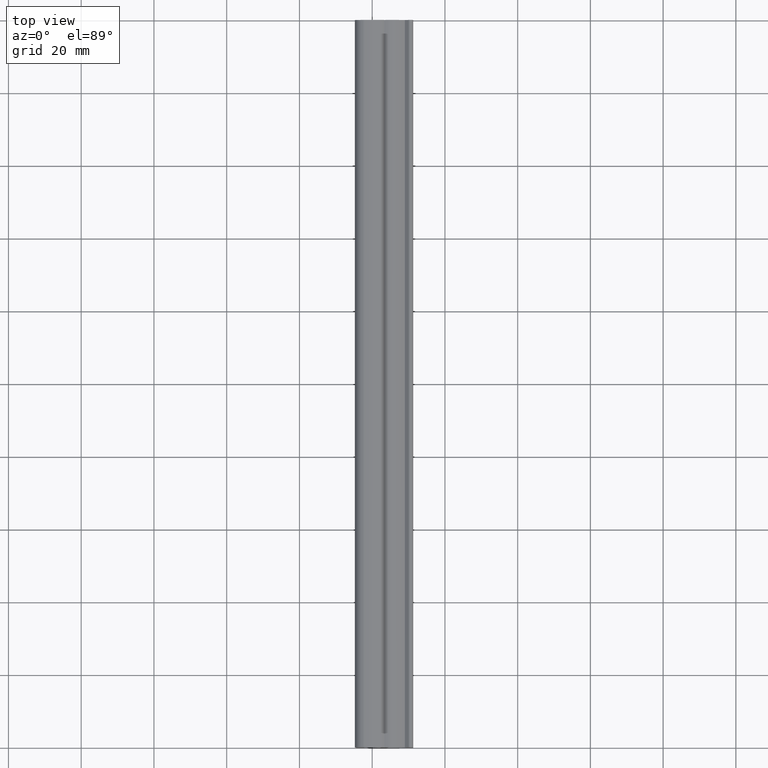
[diagram: clean part render]
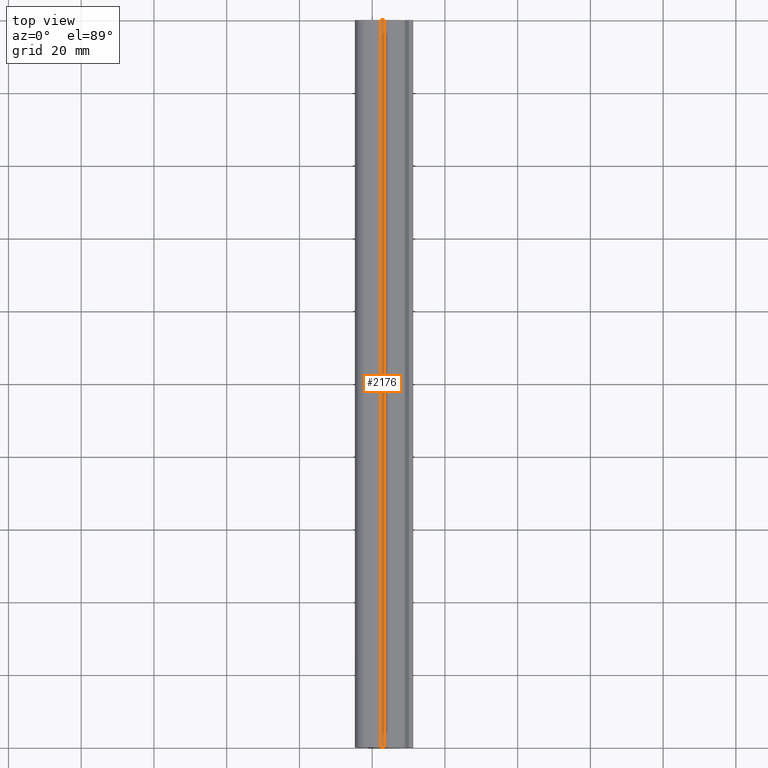
[diagram: same view with one face highlighted and labeled with its STEP entity id]
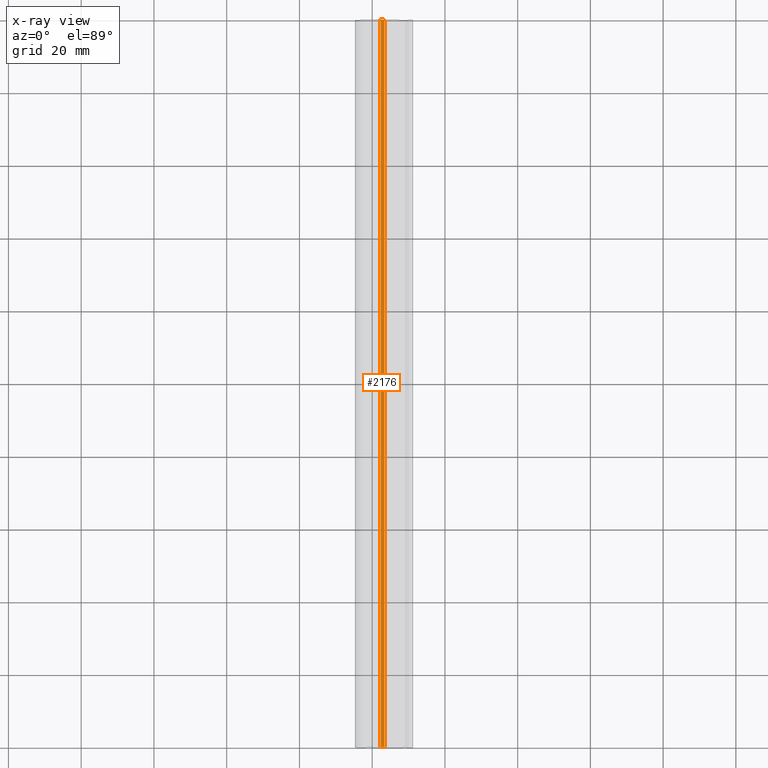
[diagram: x-ray of the same camera — body ghosted, the highlighted face saturated]
A machine part, top view. The second image highlights one B-rep face of the part: STEP entity #2176.
The next image is the same camera in x-ray: the body ghosted, the highlighted face saturated — about 0% of this face is hidden behind the body in this view.
In plain terms, the highlighted face is a freeform B-spline surface patch.
Its self-contained STEP definition (entity closure, byte-faithful):
#539=CARTESIAN_POINT('',(3.346007917701170,0.0,-0.764694374094733));
#540=VERTEX_POINT('',#539);
#554=CARTESIAN_POINT('',(2.315008351885935,0.0,-0.294374045513836));
#555=VERTEX_POINT('',#554);
#556=CARTESIAN_POINT('',(3.346007917701174,0.0,-0.764694374094733));
#557=CARTESIAN_POINT('',(2.872160055464380,0.0,-0.438228115813905));
#558=CARTESIAN_POINT('',(2.315008351885934,0.0,-0.294374045513835));
#566=(BOUNDED_CURVE()B_SPLINE_CURVE(2,(#556,#557,#558),.UNSPECIFIED.,.F.,.U.)CURVE()GEOMETRIC_REPRESENTATION_ITEM()QUASI_UNIFORM_CURVE()RATIONAL_B_SPLINE_CURVE((1.0,0.984673672583946,1.0))REPRESENTATION_ITEM(''));
#567=EDGE_CURVE('',#540,#555,#566,.T.);
#763=CARTESIAN_POINT('',(2.315008351885935,200.0,-0.294374045513836));
#764=VERTEX_POINT('',#763);
#778=CARTESIAN_POINT('',(3.346007917701170,200.0,-0.764694374094733));
#779=VERTEX_POINT('',#778);
#780=CARTESIAN_POINT('',(3.346007917701174,200.0,-0.764694374094733));
#781=CARTESIAN_POINT('',(2.872160055464380,199.999999999999970,-0.438228115813905));
#782=CARTESIAN_POINT('',(2.315008351885934,200.0,-0.294374045513835));
#790=(BOUNDED_CURVE()B_SPLINE_CURVE(2,(#780,#781,#782),.UNSPECIFIED.,.F.,.U.)CURVE()GEOMETRIC_REPRESENTATION_ITEM()QUASI_UNIFORM_CURVE()RATIONAL_B_SPLINE_CURVE((1.0,0.984673672583946,1.0))REPRESENTATION_ITEM(''));
#791=EDGE_CURVE('',#779,#764,#790,.T.);
#2144=CARTESIAN_POINT('',(3.346007917701170,200.0,-0.764694374094733));
#2145=CARTESIAN_POINT('',(3.346007917701170,0.0,-0.764694374094733));
#2146=QUASI_UNIFORM_CURVE('',1,(#2144,#2145),.UNSPECIFIED.,.F.,.U.);
#2147=EDGE_CURVE('',#779,#540,#2146,.T.);
#2152=CARTESIAN_POINT('',(2.287527319461705,205.0,-0.287406325432904));
#2153=CARTESIAN_POINT('',(2.287527319461705,-5.125000000000000,-0.287406325432904));
#2154=CARTESIAN_POINT('',(2.888571139538483,205.000000000000060,-0.437010818798083));
#2155=CARTESIAN_POINT('',(2.888571139538483,-5.125000000000000,-0.437010818798083));
#2156=CARTESIAN_POINT('',(3.392409193740251,205.000000000000060,-0.797264053656167));
#2157=CARTESIAN_POINT('',(3.392409193740251,-5.124999999999999,-0.797264053656167));
#2165=(BOUNDED_SURFACE()B_SPLINE_SURFACE(1,2,((#2152,#2154,#2156),(#2153,#2155,#2157)),.UNSPECIFIED.,.F.,.F.,.U.)B_SPLINE_SURFACE_WITH_KNOTS((2,2),(3,3),(0.0,210.125000000000000),(0.0,0.898974937789049),.UNSPECIFIED.)GEOMETRIC_REPRESENTATION_ITEM()RATIONAL_B_SPLINE_SURFACE(((1.0,0.980355240729131,0.996030773945083),(1.0,0.980355240729131,0.996030773945083)))REPRESENTATION_ITEM('')SURFACE());
#2166=ORIENTED_EDGE('',*,*,#567,.F.);
#2167=ORIENTED_EDGE('',*,*,#2147,.F.);
#2168=ORIENTED_EDGE('',*,*,#791,.T.);
#2169=CARTESIAN_POINT('',(2.315008351885935,200.0,-0.294374045513836));
#2170=CARTESIAN_POINT('',(2.315008351885935,0.0,-0.294374045513836));
#2171=QUASI_UNIFORM_CURVE('',1,(#2169,#2170),.UNSPECIFIED.,.F.,.U.);
#2172=EDGE_CURVE('',#764,#555,#2171,.T.);
#2173=ORIENTED_EDGE('',*,*,#2172,.T.);
#2174=EDGE_LOOP('',(#2166,#2167,#2168,#2173));
#2175=FACE_OUTER_BOUND('',#2174,.T.);
#2176=ADVANCED_FACE('',(#2175),#2165,.T.);